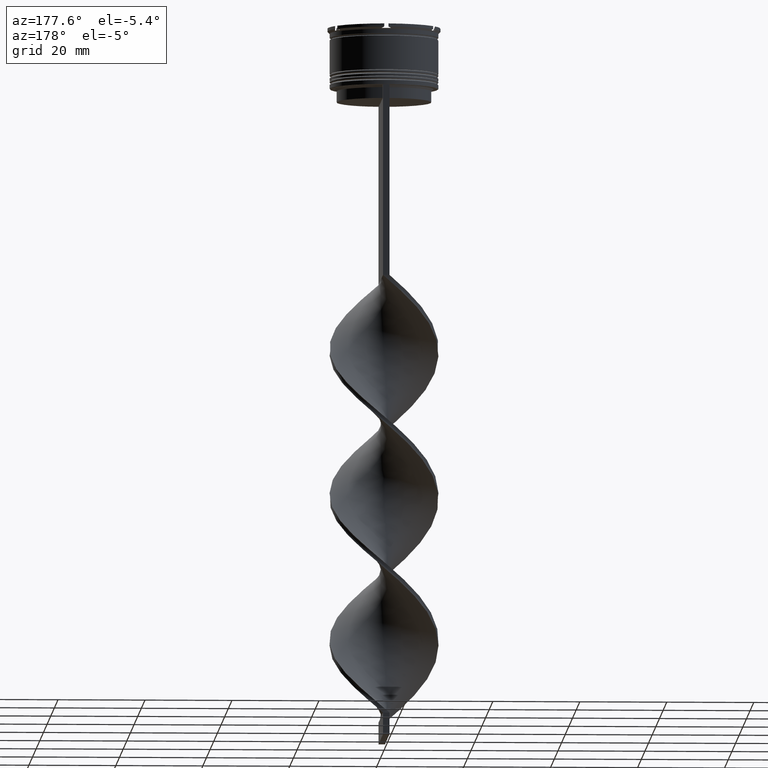
[diagram: clean part render]
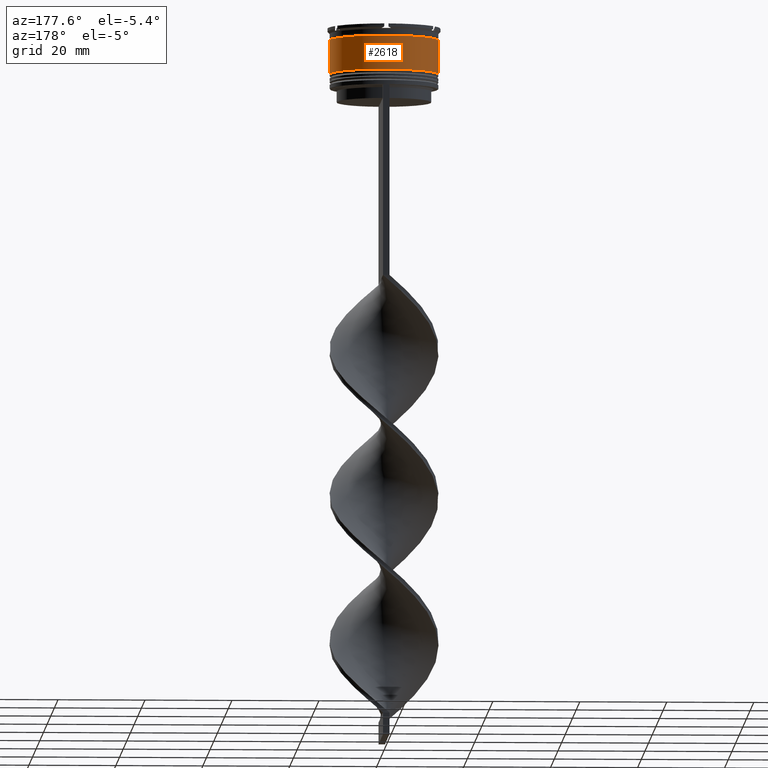
[diagram: same view with one face highlighted and labeled with its STEP entity id]
A machine part, auxiliary view. The second image highlights one B-rep face of the part: STEP entity #2618.
In plain terms, the highlighted cylindrical surface (partial cylindrical patch) has radius 12.5 mm, axis along (-0, -0, 1).
Its self-contained STEP definition (entity closure, byte-faithful):
#10 = DIRECTION ( 'NONE',  ( -0.000000000000000000, -0.000000000000000000, 1.000000000000000000 ) ) ;
#214 = CARTESIAN_POINT ( 'NONE',  ( -12.50000000000000355, 1.530808498934191916E-15, -10.50000000000000178 ) ) ;
#223 = VECTOR ( 'NONE', #3344, 1000.000000000000000 ) ;
#362 = LINE ( 'NONE', #3480, #1026 ) ;
#417 = EDGE_CURVE ( 'NONE', #2387, #3936, #1771, .T. ) ;
#609 = CARTESIAN_POINT ( 'NONE',  ( 12.49999999999999822, 0.000000000000000000, -2.699999999999999289 ) ) ;
#649 = DIRECTION ( 'NONE',  ( 1.000000000000000000, 0.000000000000000000, 0.000000000000000000 ) ) ;
#653 = CARTESIAN_POINT ( 'NONE',  ( -12.49999999999999822, 1.530808498934191324E-15, -2.699999999999999289 ) ) ;
#672 = CYLINDRICAL_SURFACE ( 'NONE', #959, 12.50000000000000000 ) ;
#696 = VERTEX_POINT ( 'NONE', #1449 ) ;
#742 = ORIENTED_EDGE ( 'NONE', *, *, #3127, .T. ) ;
#846 = EDGE_CURVE ( 'NONE', #696, #3861, #362, .T. ) ;
#942 = DIRECTION ( 'NONE',  ( -0.000000000000000000, -0.000000000000000000, 1.000000000000000000 ) ) ;
#959 = AXIS2_PLACEMENT_3D ( 'NONE', #2872, #10, #2218 ) ;
#963 = AXIS2_PLACEMENT_3D ( 'NONE', #1841, #942, #2601 ) ;
#987 = DIRECTION ( 'NONE',  ( -0.000000000000000000, -0.000000000000000000, 1.000000000000000000 ) ) ;
#1026 = VECTOR ( 'NONE', #1928, 1000.000000000000000 ) ;
#1398 = ORIENTED_EDGE ( 'NONE', *, *, #3000, .F. ) ;
#1402 = ORIENTED_EDGE ( 'NONE', *, *, #417, .T. ) ;
#1440 = CARTESIAN_POINT ( 'NONE',  ( -12.50000000000000000, 1.530808498934191521E-15, 0.000000000000000000 ) ) ;
#1449 = CARTESIAN_POINT ( 'NONE',  ( 12.50000000000000178, 0.000000000000000000, -10.50000000000000178 ) ) ;
#1634 = CIRCLE ( 'NONE', #3970, 12.50000000000000178 ) ;
#1660 = EDGE_LOOP ( 'NONE', ( #742, #1402, #1398, #2012 ) ) ;
#1771 = LINE ( 'NONE', #1440, #223 ) ;
#1841 = CARTESIAN_POINT ( 'NONE',  ( 0.000000000000000000, 0.000000000000000000, -2.699999999999999289 ) ) ;
#1928 = DIRECTION ( 'NONE',  ( -0.000000000000000000, -0.000000000000000000, 1.000000000000000000 ) ) ;
#2012 = ORIENTED_EDGE ( 'NONE', *, *, #846, .F. ) ;
#2218 = DIRECTION ( 'NONE',  ( 1.000000000000000000, 0.000000000000000000, 0.000000000000000000 ) ) ;
#2387 = VERTEX_POINT ( 'NONE', #214 ) ;
#2601 = DIRECTION ( 'NONE',  ( 1.000000000000000000, 0.000000000000000000, 0.000000000000000000 ) ) ;
#2618 = ADVANCED_FACE ( 'NONE', ( #3819 ), #672, .T. ) ;
#2872 = CARTESIAN_POINT ( 'NONE',  ( 0.000000000000000000, 0.000000000000000000, 0.000000000000000000 ) ) ;
#3000 = EDGE_CURVE ( 'NONE', #3861, #3936, #3437, .T. ) ;
#3127 = EDGE_CURVE ( 'NONE', #696, #2387, #1634, .T. ) ;
#3221 = CARTESIAN_POINT ( 'NONE',  ( 0.000000000000000000, 0.000000000000000000, -10.50000000000000178 ) ) ;
#3344 = DIRECTION ( 'NONE',  ( -0.000000000000000000, -0.000000000000000000, 1.000000000000000000 ) ) ;
#3437 = CIRCLE ( 'NONE', #963, 12.49999999999999822 ) ;
#3480 = CARTESIAN_POINT ( 'NONE',  ( 12.50000000000000000, 0.000000000000000000, 0.000000000000000000 ) ) ;
#3819 = FACE_OUTER_BOUND ( 'NONE', #1660, .T. ) ;
#3861 = VERTEX_POINT ( 'NONE', #609 ) ;
#3936 = VERTEX_POINT ( 'NONE', #653 ) ;
#3970 = AXIS2_PLACEMENT_3D ( 'NONE', #3221, #987, #649 ) ;